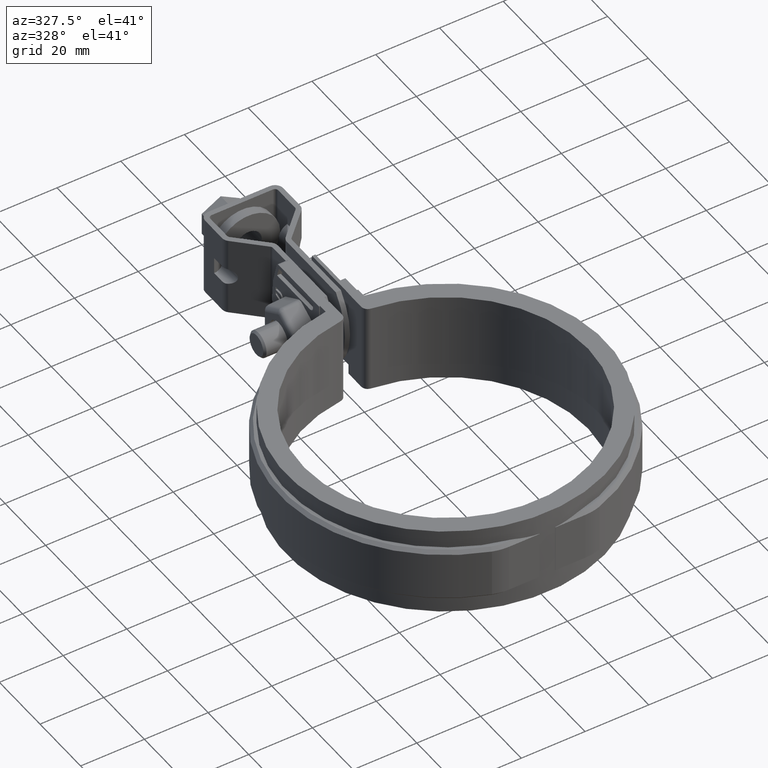
[diagram: clean part render]
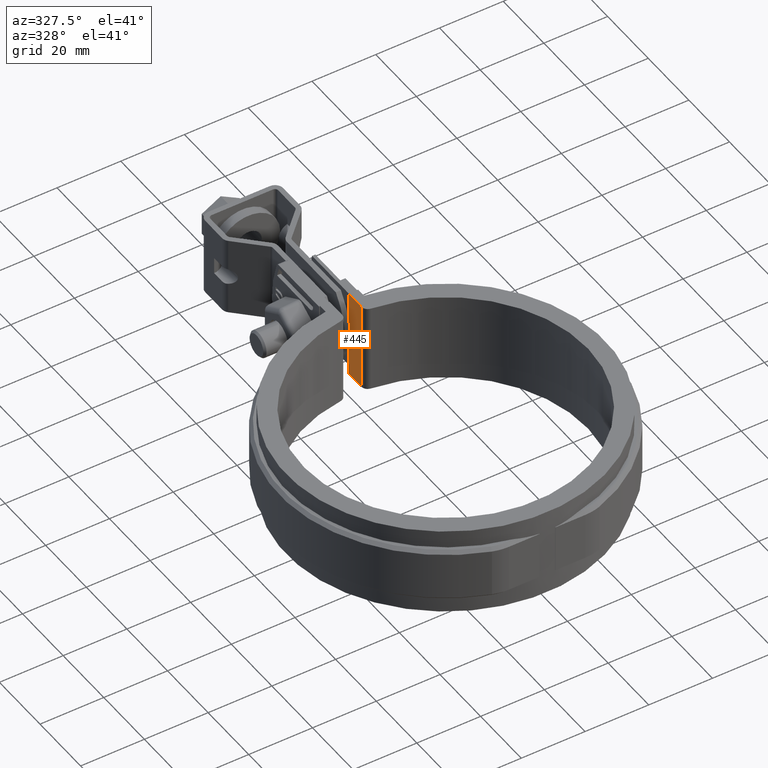
[diagram: same view with one face highlighted and labeled with its STEP entity id]
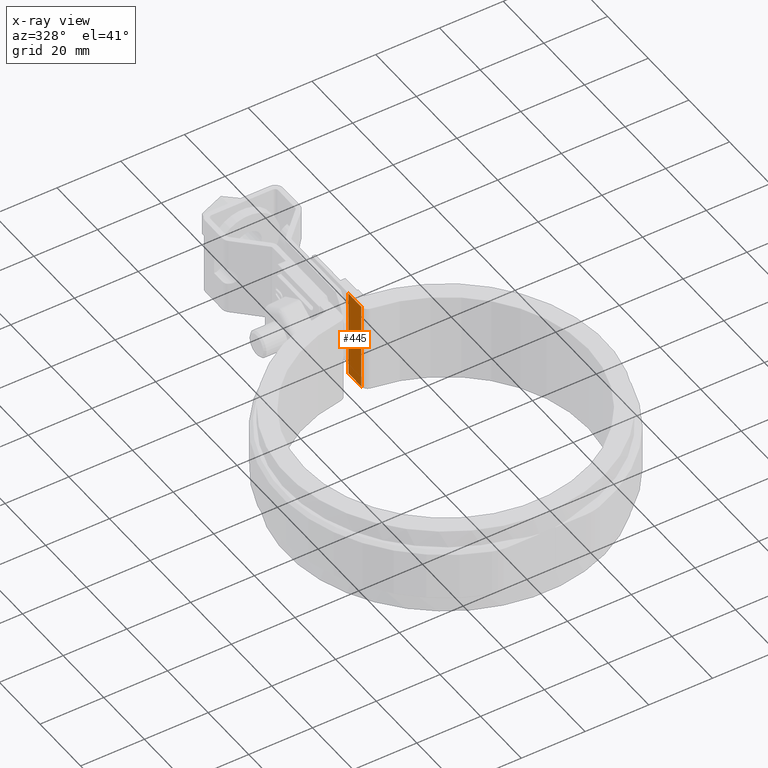
[diagram: x-ray of the same camera — body ghosted, the highlighted face saturated]
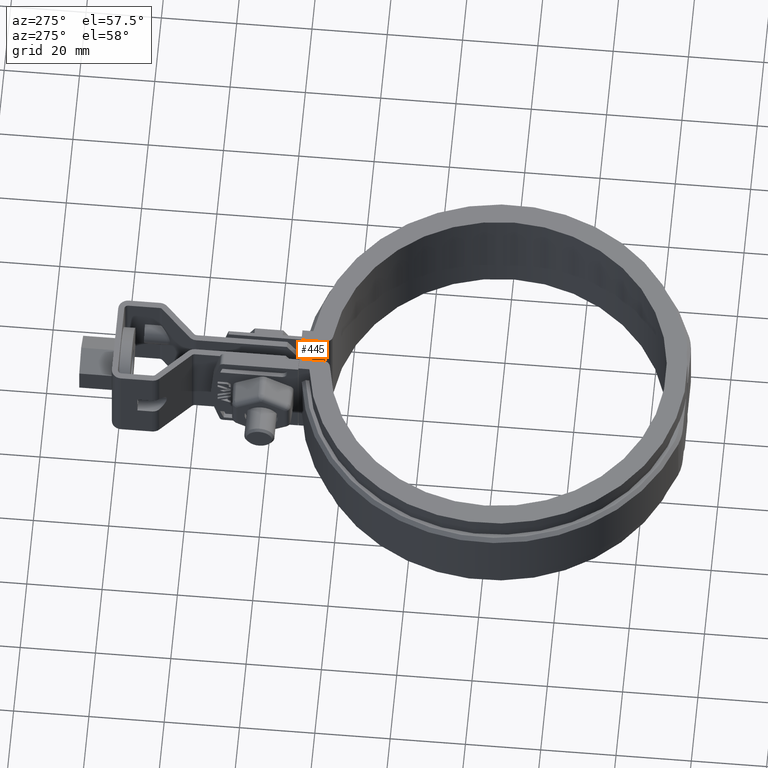
[diagram: same view with one face highlighted and labeled with its STEP entity id]
A machine part, auxiliary view. The second image highlights one B-rep face of the part: STEP entity #445.
The next image is the same camera in x-ray: the body ghosted, the highlighted face saturated — about 0% of this face is hidden behind the body in this view.
A second angle (auxiliary view) of the same face is appended — the face is thin or edge-on in the first view.
In plain terms, the highlighted planar face has unit normal (1, -0, 0).
Its self-contained STEP definition (entity closure, byte-faithful):
#445 = ADVANCED_FACE( '', ( #866 ), #867, .F. );
#866 = FACE_OUTER_BOUND( '', #1946, .T. );
#867 = PLANE( '', #1947 );
#1946 = EDGE_LOOP( '', ( #4066, #4067, #4068, #4069 ) );
#1947 = AXIS2_PLACEMENT_3D( '', #4070, #4071, #4072 );
#4066 = ORIENTED_EDGE( '', *, *, #6473, .T. );
#4067 = ORIENTED_EDGE( '', *, *, #6474, .F. );
#4068 = ORIENTED_EDGE( '', *, *, #6475, .F. );
#4069 = ORIENTED_EDGE( '', *, *, #6476, .T. );
#4070 = CARTESIAN_POINT( '', ( 2.99999999999999, 52.5500000000000, 14.0000000000000 ) );
#4071 = DIRECTION( '', ( 1.00000000000000, -2.77555756156289E-017, 0.000000000000000 ) );
#4072 = DIRECTION( '', ( 0.000000000000000, 0.000000000000000, 1.00000000000000 ) );
#6473 = EDGE_CURVE( '', #7586, #7587, #7588, .T. );
#6474 = EDGE_CURVE( '', #7589, #7587, #7590, .T. );
#6475 = EDGE_CURVE( '', #7591, #7589, #7592, .F. );
#6476 = EDGE_CURVE( '', #7591, #7586, #7593, .T. );
#7586 = VERTEX_POINT( '', #10880 );
#7587 = VERTEX_POINT( '', #10881 );
#7588 = LINE( '', #10882, #10883 );
#7589 = VERTEX_POINT( '', #10884 );
#7590 = LINE( '', #10885, #10886 );
#7591 = VERTEX_POINT( '', #10887 );
#7592 = LINE( '', #10888, #10889 );
#7593 = LINE( '', #10890, #10891 );
#10880 = CARTESIAN_POINT( '', ( 2.99999999999999, 52.5500000000000, -14.0000000000000 ) );
#10881 = CARTESIAN_POINT( '', ( 2.99999999999999, 46.2806925185871, -14.0000000000000 ) );
#10882 = CARTESIAN_POINT( '', ( 2.99999999999999, 52.5500000000000, -14.0000000000000 ) );
#10883 = VECTOR( '', #12852, 1000.00000000000 );
#10884 = CARTESIAN_POINT( '', ( 2.99999999999999, 46.2806925185871, 14.0000000000000 ) );
#10885 = CARTESIAN_POINT( '', ( 2.99999999999999, 46.2806925185870, 14.0000000000000 ) );
#10886 = VECTOR( '', #12853, 1000.00000000000 );
#10887 = CARTESIAN_POINT( '', ( 2.99999999999999, 52.5500000000000, 14.0000000000000 ) );
#10888 = CARTESIAN_POINT( '', ( 2.99999999999999, 48.1024067066612, 14.0000000000000 ) );
#10889 = VECTOR( '', #12854, 1000.00000000000 );
#10890 = CARTESIAN_POINT( '', ( 2.99999999999999, 52.5500000000000, 14.0000000000000 ) );
#10891 = VECTOR( '', #12855, 1000.00000000000 );
#12852 = DIRECTION( '', ( -2.77555756156289E-017, -1.00000000000000, 0.000000000000000 ) );
#12853 = DIRECTION( '', ( 0.000000000000000, 0.000000000000000, -1.00000000000000 ) );
#12854 = DIRECTION( '', ( 2.77555756156289E-017, 1.00000000000000, 0.000000000000000 ) );
#12855 = DIRECTION( '', ( 0.000000000000000, 0.000000000000000, -1.00000000000000 ) );